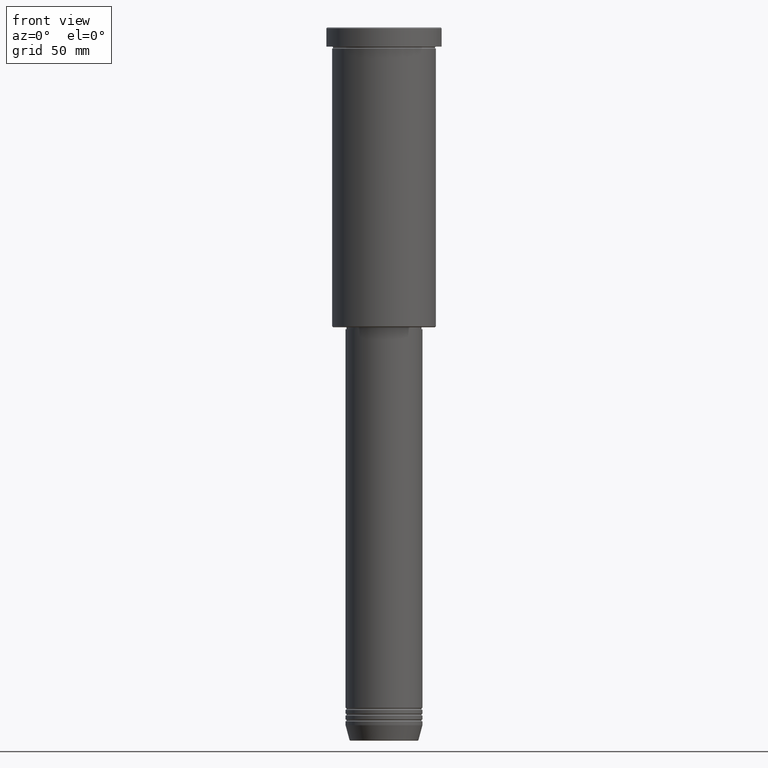
[diagram: clean part render]
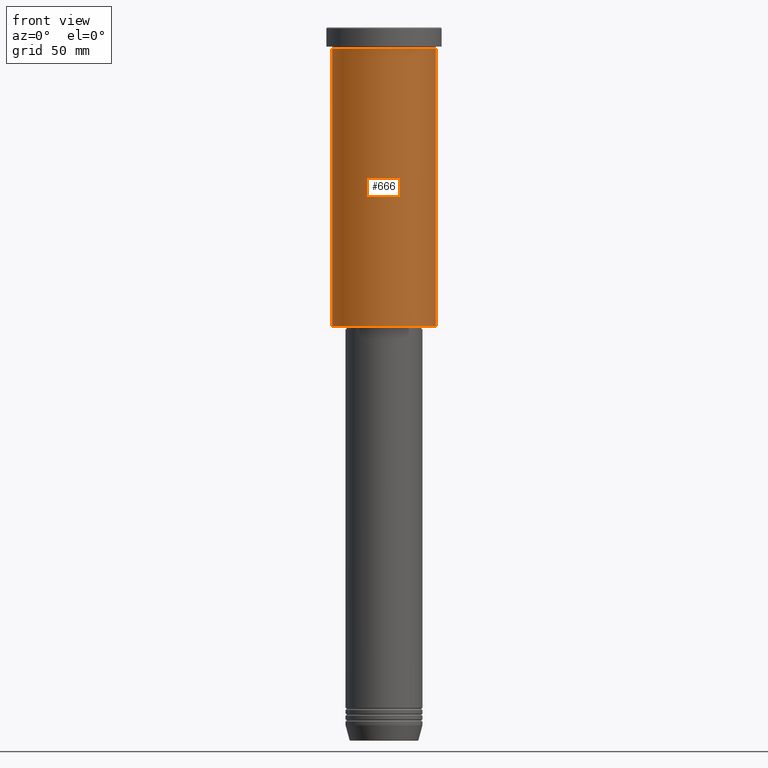
[diagram: same view with one face highlighted and labeled with its STEP entity id]
A machine part, front view. The second image highlights one B-rep face of the part: STEP entity #666.
In plain terms, the highlighted cylindrical surface (partial cylindrical patch) has radius 27 mm, axis along (-0, -0, 1).
Its self-contained STEP definition (entity closure, byte-faithful):
#57 = DIRECTION ( 'NONE',  ( -0.000000000000000000, -0.000000000000000000, 1.000000000000000000 ) ) ;
#111 = VERTEX_POINT ( 'NONE', #467 ) ;
#138 = DIRECTION ( 'NONE',  ( 1.000000000000000000, 0.000000000000000000, 0.000000000000000000 ) ) ;
#157 = CARTESIAN_POINT ( 'NONE',  ( 0.000000000000000000, 0.000000000000000000, 0.000000000000000000 ) ) ;
#168 = DIRECTION ( 'NONE',  ( -0.000000000000000000, -0.000000000000000000, 1.000000000000000000 ) ) ;
#192 = ORIENTED_EDGE ( 'NONE', *, *, #458, .F. ) ;
#241 = CARTESIAN_POINT ( 'NONE',  ( -27.00000000000000355, 3.306546357697854128E-15, -155.4999999999999432 ) ) ;
#257 = CARTESIAN_POINT ( 'NONE',  ( 0.000000000000000000, 0.000000000000000000, -10.99999999999999289 ) ) ;
#330 = DIRECTION ( 'NONE',  ( -0.000000000000000000, -0.000000000000000000, 1.000000000000000000 ) ) ;
#381 = CIRCLE ( 'NONE', #598, 27.00000000000000355 ) ;
#385 = EDGE_CURVE ( 'NONE', #590, #642, #982, .T. ) ;
#422 = EDGE_LOOP ( 'NONE', ( #1164, #975, #784, #192 ) ) ;
#458 = EDGE_CURVE ( 'NONE', #642, #111, #381, .T. ) ;
#467 = CARTESIAN_POINT ( 'NONE',  ( 27.00000000000000355, 0.000000000000000000, -10.99999999999999289 ) ) ;
#475 = VERTEX_POINT ( 'NONE', #599 ) ;
#480 = VECTOR ( 'NONE', #635, 1000.000000000000000 ) ;
#501 = EDGE_CURVE ( 'NONE', #475, #111, #1090, .T. ) ;
#533 = DIRECTION ( 'NONE',  ( -1.000000000000000000, 0.000000000000000000, 0.000000000000000000 ) ) ;
#590 = VERTEX_POINT ( 'NONE', #241 ) ;
#598 = AXIS2_PLACEMENT_3D ( 'NONE', #257, #330, #613 ) ;
#599 = CARTESIAN_POINT ( 'NONE',  ( 27.00000000000000355, 0.000000000000000000, -155.4999999999999432 ) ) ;
#613 = DIRECTION ( 'NONE',  ( 1.000000000000000000, 0.000000000000000000, 0.000000000000000000 ) ) ;
#635 = DIRECTION ( 'NONE',  ( -0.000000000000000000, -0.000000000000000000, 1.000000000000000000 ) ) ;
#642 = VERTEX_POINT ( 'NONE', #1052 ) ;
#650 = AXIS2_PLACEMENT_3D ( 'NONE', #815, #168, #533 ) ;
#666 = ADVANCED_FACE ( 'NONE', ( #1139 ), #956, .T. ) ;
#685 = DIRECTION ( 'NONE',  ( -0.000000000000000000, -0.000000000000000000, 1.000000000000000000 ) ) ;
#747 = CIRCLE ( 'NONE', #650, 27.00000000000000355 ) ;
#772 = CARTESIAN_POINT ( 'NONE',  ( -27.00000000000000355, 3.306546357697854128E-15, 0.000000000000000000 ) ) ;
#784 = ORIENTED_EDGE ( 'NONE', *, *, #501, .T. ) ;
#815 = CARTESIAN_POINT ( 'NONE',  ( 0.000000000000000000, 0.000000000000000000, -155.4999999999999432 ) ) ;
#855 = EDGE_CURVE ( 'NONE', #590, #475, #747, .T. ) ;
#903 = CARTESIAN_POINT ( 'NONE',  ( 27.00000000000000355, 0.000000000000000000, 0.000000000000000000 ) ) ;
#946 = VECTOR ( 'NONE', #685, 1000.000000000000000 ) ;
#956 = CYLINDRICAL_SURFACE ( 'NONE', #971, 27.00000000000000355 ) ;
#971 = AXIS2_PLACEMENT_3D ( 'NONE', #157, #57, #138 ) ;
#975 = ORIENTED_EDGE ( 'NONE', *, *, #855, .T. ) ;
#982 = LINE ( 'NONE', #772, #946 ) ;
#1052 = CARTESIAN_POINT ( 'NONE',  ( -27.00000000000000355, 3.306546357697854128E-15, -10.99999999999999289 ) ) ;
#1090 = LINE ( 'NONE', #903, #480 ) ;
#1139 = FACE_OUTER_BOUND ( 'NONE', #422, .T. ) ;
#1164 = ORIENTED_EDGE ( 'NONE', *, *, #385, .F. ) ;